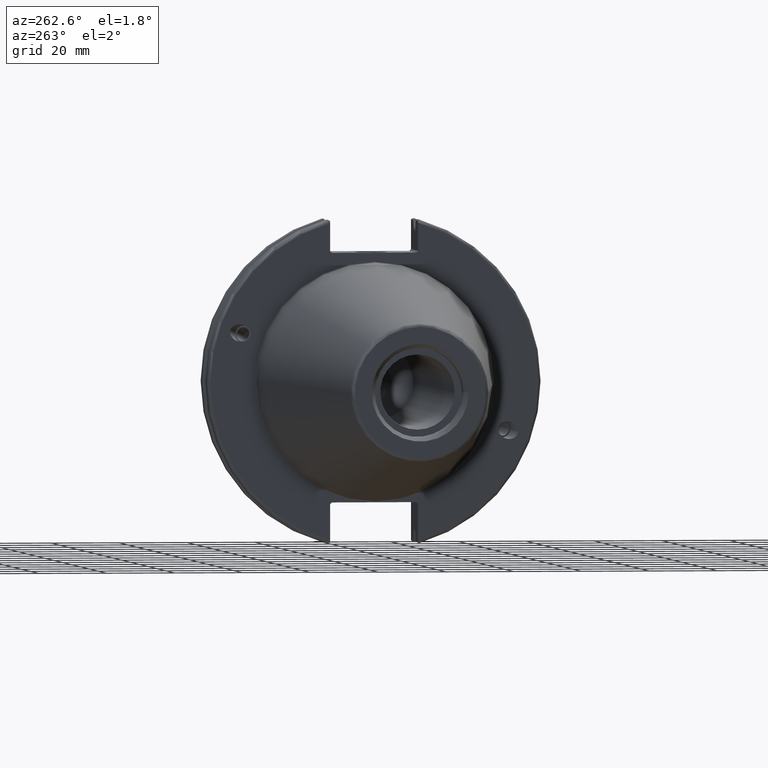
[diagram: clean part render]
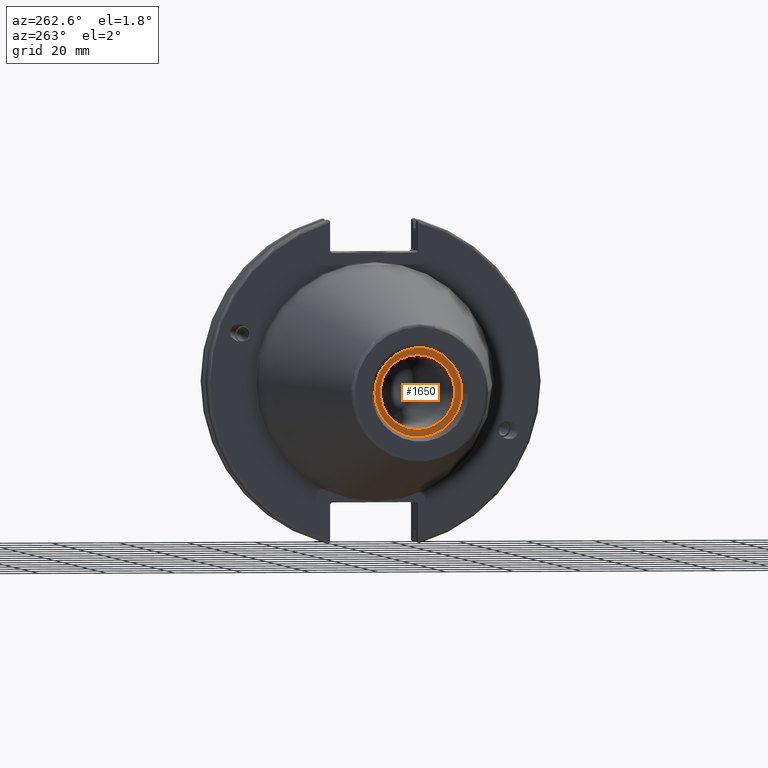
[diagram: same view with one face highlighted and labeled with its STEP entity id]
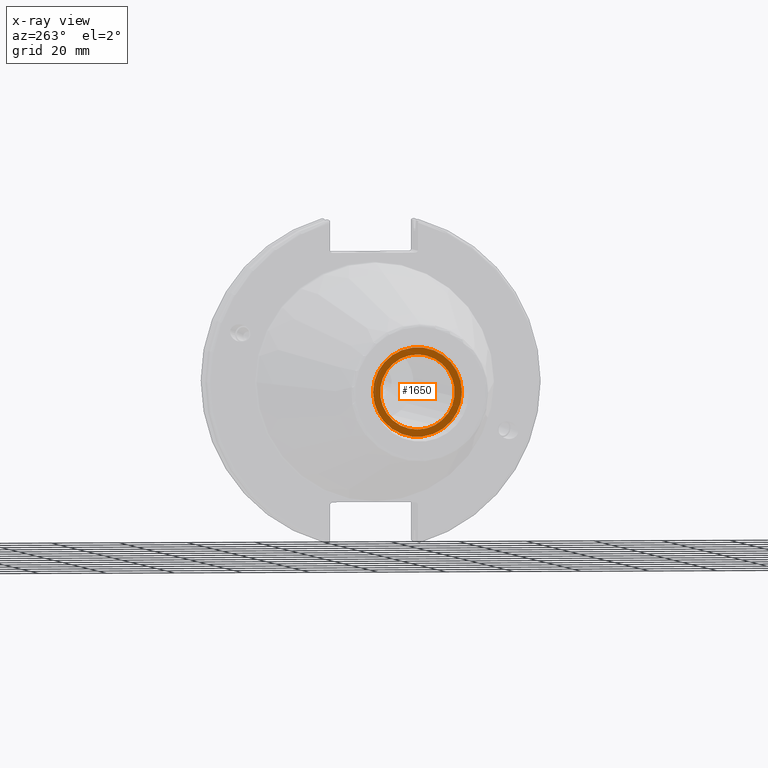
[diagram: x-ray of the same camera — body ghosted, the highlighted face saturated]
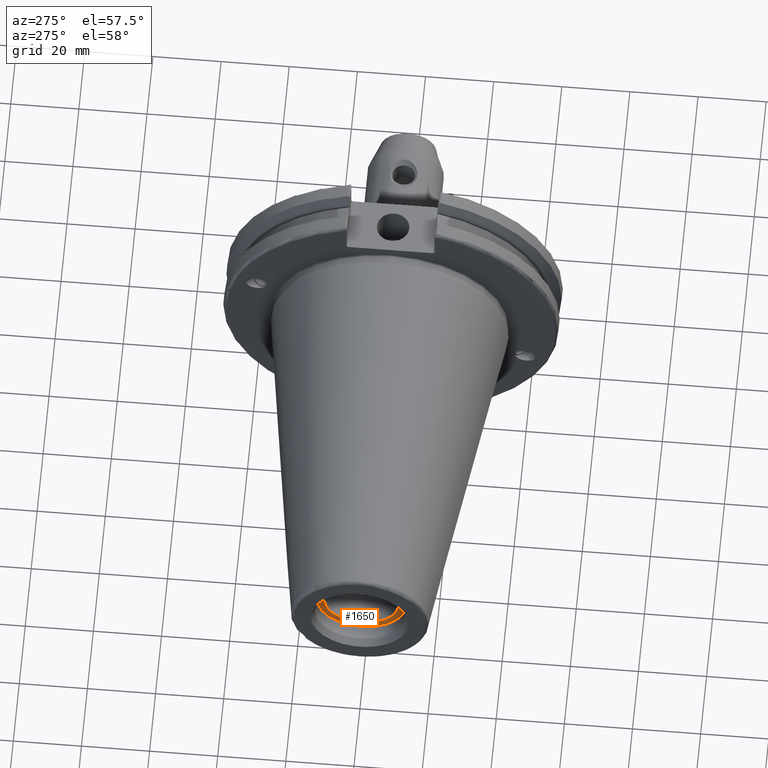
[diagram: same view with one face highlighted and labeled with its STEP entity id]
A machine part, auxiliary view. The second image highlights one B-rep face of the part: STEP entity #1650.
The next image is the same camera in x-ray: the body ghosted, the highlighted face saturated — about 0% of this face is hidden behind the body in this view.
A second angle (auxiliary view) of the same face is appended — the face is thin or edge-on in the first view.
In plain terms, the highlighted planar face has unit normal (-1, 0, 0).
Its self-contained STEP definition (entity closure, byte-faithful):
#76=FACE_BOUND('',#389,.T.);
#104=CIRCLE('',#1721,10.9855);
#154=CIRCLE('',#1840,13.1);
#191=PLANE('',#1844);
#279=FACE_OUTER_BOUND('',#388,.T.);
#388=EDGE_LOOP('',(#1533));
#389=EDGE_LOOP('',(#1534));
#685=VERTEX_POINT('',#2677);
#798=VERTEX_POINT('',#3434);
#867=EDGE_CURVE('',#685,#685,#104,.T.);
#1040=EDGE_CURVE('',#798,#798,#154,.T.);
#1533=ORIENTED_EDGE('',*,*,#1040,.F.);
#1534=ORIENTED_EDGE('',*,*,#867,.T.);
#1650=ADVANCED_FACE('',(#279,#76),#191,.T.);
#1721=AXIS2_PLACEMENT_3D('',#2678,#1962,#1963);
#1840=AXIS2_PLACEMENT_3D('',#3435,#2271,#2272);
#1844=AXIS2_PLACEMENT_3D('',#3443,#2282,#2283);
#1962=DIRECTION('center_axis',(1.,0.,0.));
#1963=DIRECTION('ref_axis',(0.,0.,1.));
#2271=DIRECTION('center_axis',(1.,0.,0.));
#2272=DIRECTION('ref_axis',(0.,0.,-1.));
#2282=DIRECTION('center_axis',(-1.,0.,0.));
#2283=DIRECTION('ref_axis',(0.,0.,1.));
#2677=CARTESIAN_POINT('',(-95.25,1.34533574120333E-15,-10.9855));
#2678=CARTESIAN_POINT('Origin',(-95.25,0.,0.));
#3434=CARTESIAN_POINT('',(-95.25,-13.1,-1.60428730688303E-15));
#3435=CARTESIAN_POINT('Origin',(-95.25,0.,0.));
#3443=CARTESIAN_POINT('Origin',(-95.25,13.1,0.));